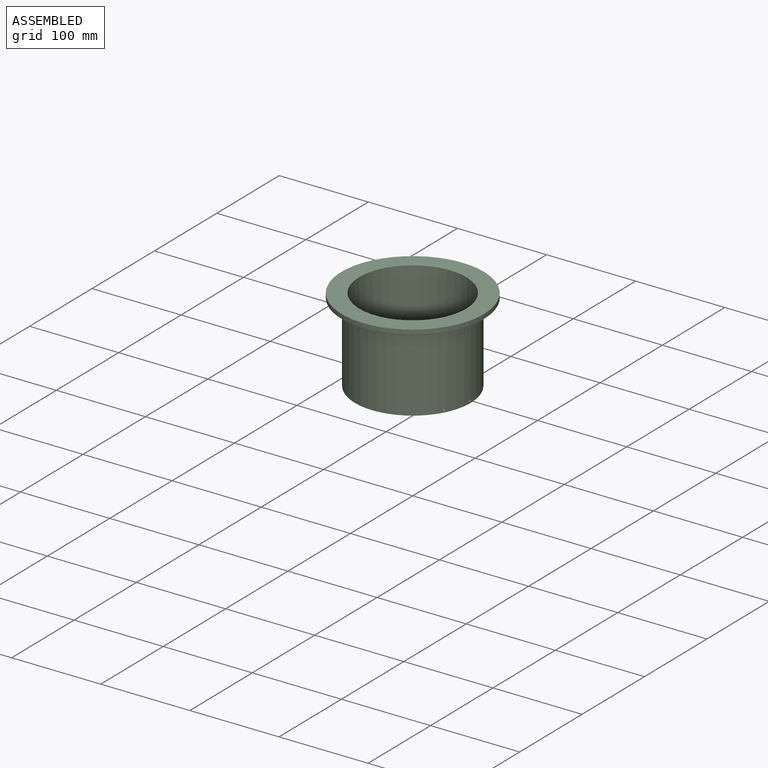
[diagram: assembled view]
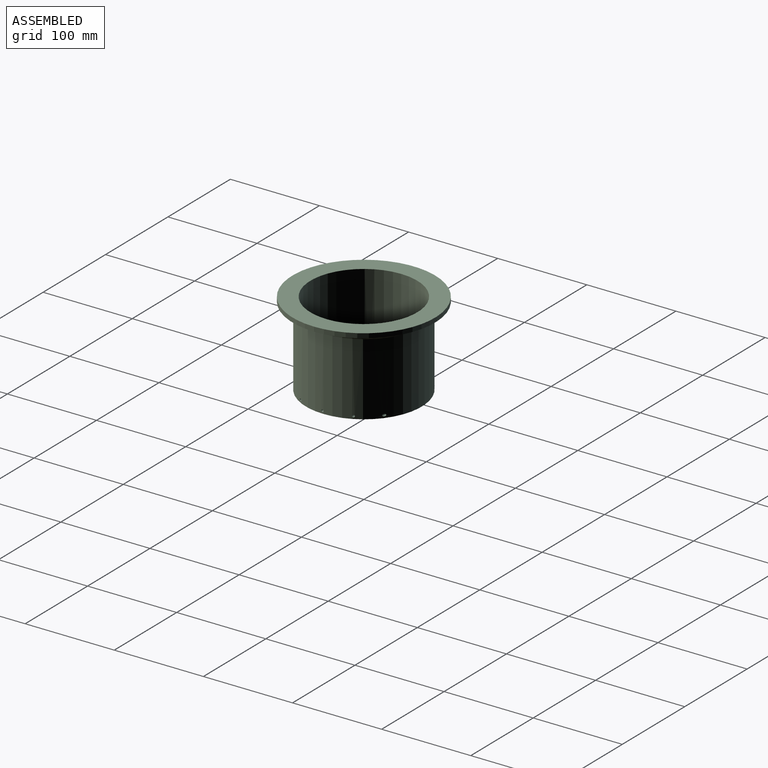
[diagram: assembled view, second angle]
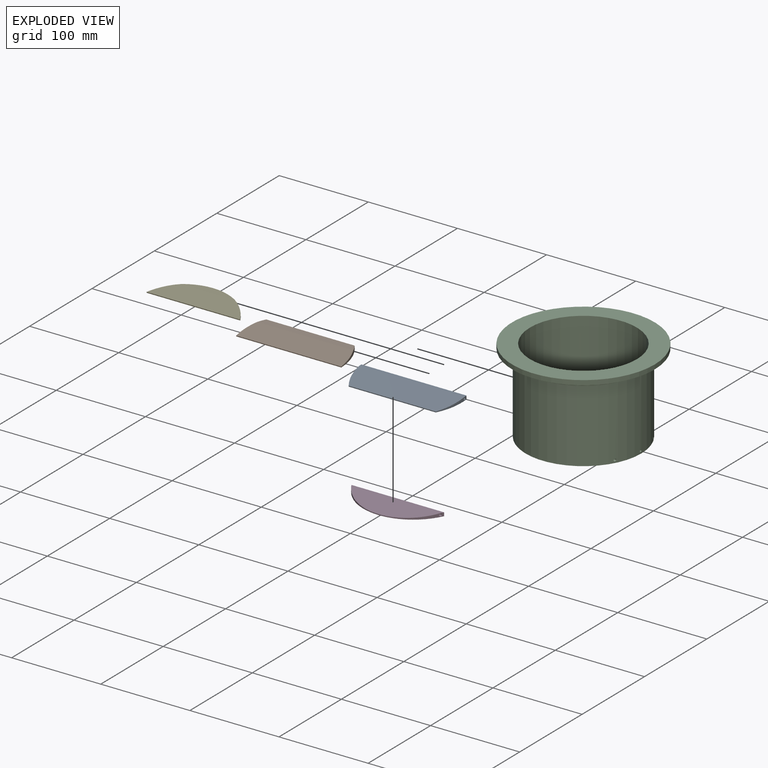
[diagram: exploded view]
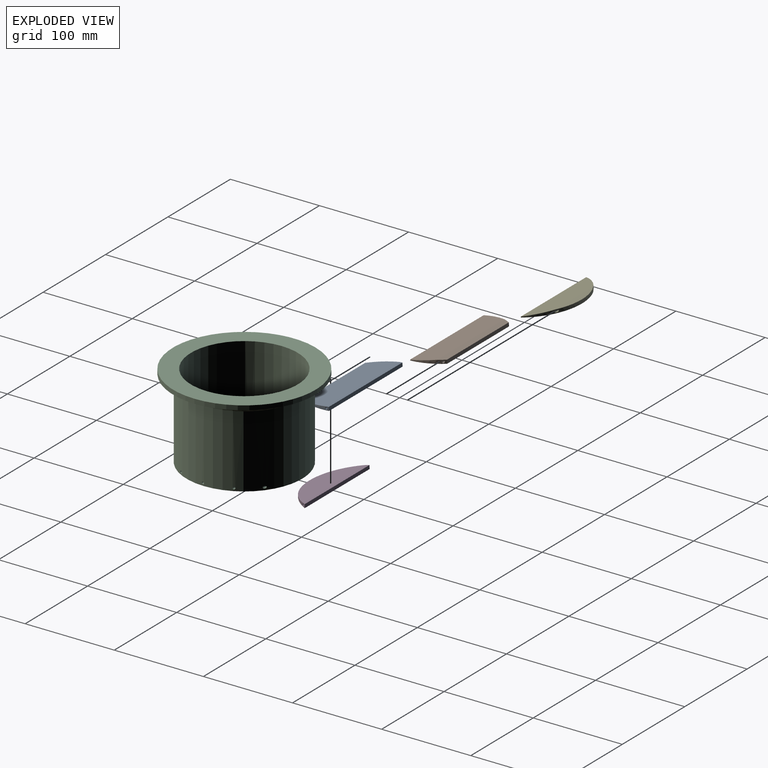
[diagram: exploded view, second angle]
ASSEMBLY  parts=5 mates=4
PART A: 8 faces, bbox 118x35x4 mm
  f0: plane 97.82x1mm, normal (0,-1,0), area 97.8mm2, adj f1,f2,f4,f7
  f1: cylinder r=59mm len=35mm, axis (0,0,-1), area 90.6mm2, adj f0,f3,f4,f5,f6,f7
  f2: cylinder r=59mm len=35mm, axis (0,0,-1), area 90.6mm2, adj f0,f3,f4,f5,f6,f7
  f3: plane 117.93x4mm, normal (0,1,0), area 471.7mm2, adj f1,f2,f4,f5
  f4: plane 118x35mm, normal (0,0,1), area 3916.1mm2, adj f0,f1,f2,f3
  f5: plane 118x3mm, normal (0,0,-1), area 353.9mm2, adj f1,f2,f3,f7
  f6: cylinder r=1.25mm len=118mm, axis (-1,0,0), area 926.5mm2, adj f1,f2
  f7: plane 117.98x32mm, normal (0,-0.09,-1), area 3577.8mm2, adj f0,f1,f2,f5
PART B: 8 faces, bbox 118x35x4 mm
  f0: plane 107.8x8mm, normal (0,0,-1), area 829.9mm2, adj f1,f2,f4,f6
  f1: plane 99.14x4mm, normal (0,1,0), area 396.5mm2, adj f0,f2,f4,f5
  f2: cylinder r=59mm len=35mm, axis (0,0,-1), area 100.7mm2, adj f0,f1,f3,f5,f6,f7
  f3: plane 117.85x1mm, normal (0,-1,0), area 117.8mm2, adj f2,f4,f5,f6
  f4: cylinder r=59mm len=35mm, axis (0,0,-1), area 100.7mm2, adj f0,f1,f3,f5,f6,f7
  f5: plane 118x35mm, normal (0,0,1), area 3935.5mm2, adj f1,f2,f3,f4
  f6: plane 118x27mm, normal (0,-0.11,-0.99), area 3124.8mm2, adj f0,f2,f3,f4
  f7: cylinder r=1.25mm len=104.13mm, axis (1,0,0), area 806.9mm2, adj f2,f4
PART C: 15 faces, bbox 160x160x94.2 mm
  f0: plane 160x160mm, normal (0,0,1), area 3364.6mm2, adj f1,f6
  f1: cylinder r=80mm len=160mm, axis (0,0,-1), area 2513.3mm2, adj f0,f2
  f2: plane 160x160mm, normal (0,0,-1), area 8796.5mm2, adj f1,f3
  f3: cylinder r=60mm len=120mm, axis (0,0,-1), area 35474.6mm2, adj f2,f4,f7,f8,f9,f10,f11,f12
  f4: plane 130x130mm, normal (0,0,1), area 1963.5mm2, adj f3,f5
  f5: cylinder r=65mm len=130mm, axis (0,0,-1), area 33130.4mm2, adj f4,f6,f7,f8,f9,f10,f11,f12
  f6: torus R=73mm, axis (0,0,-1), area 5361.7mm2, adj f0,f5
  f7: cylinder r=1.25mm len=12.34mm, axis (1,0,0), area 68.4mm2, adj f3,f5
  f8: cylinder r=1.25mm len=12.34mm, axis (1,0,0), area 68.4mm2, adj f3,f5
  f9: cylinder r=1.25mm len=6.96mm, axis (1,0,0), area 44.4mm2, adj f3,f5
  f10: cylinder r=1.25mm len=6.96mm, axis (1,0,0), area 44.4mm2, adj f3,f5
  f11: cylinder r=1.25mm len=5mm, axis (1,0,0), area 39.3mm2, adj f3,f5
  f12: cylinder r=1.25mm len=5mm, axis (1,0,0), area 39.3mm2, adj f3,f5
  f13: cylinder r=1.25mm len=7.2mm, axis (1,0,0), area 45.3mm2, adj f3,f5
  f14: cylinder r=1.25mm len=7.2mm, axis (1,0,0), area 45.3mm2, adj f3,f5
PART D: 6 faces, bbox 103.9x31x4 mm
  f0: plane 103.87x3mm, normal (0,0,-1), area 306.5mm2, adj f1,f2,f5
  f1: plane 103.87x4mm, normal (0,1,0), area 415.5mm2, adj f0,f2,f3
  f2: cylinder r=59mm len=103.87mm, axis (0,0,-1), area 260.5mm2, adj f0,f1,f3,f4,f5
  f3: plane 103.87x31mm, normal (0,0,1), area 2292.5mm2, adj f1,f2
  f4: cylinder r=1.25mm len=101.9mm, axis (1,0,0), area 788.4mm2, adj f2
  f5: plane 100.4x28mm, normal (0,-0.11,-0.99), area 1997.4mm2, adj f0,f2
PART E: 6 faces, bbox 104.9x32x4 mm
  f0: cylinder r=59mm len=104.92mm, axis (0,0,-1), area 405.5mm2, adj f1,f2,f3,f4,f5
  f1: plane 59.33x8mm, normal (0,0,-1), area 321mm2, adj f0,f5
  f2: plane 104.92x1mm, normal (0,-1,0), area 104.9mm2, adj f0,f3,f5
  f3: plane 104.92x32mm, normal (0,0,1), area 2396.9mm2, adj f0,f2
  f4: cylinder r=1.25mm len=63.43mm, axis (1,0,0), area 465.2mm2, adj f0
  f5: plane 104.92x24mm, normal (0,-0.12,-0.99), area 2092.1mm2, adj f0,f1,f2
PLACE A rot(axis=(0,1,0.04),180deg) t=(-0.08,-7.08,94.04)mm
PLACE B rot(axis=(0,-1,-0.04),180deg) t=(0.33,-6.57,91.89)mm
PLACE C rot(axis=(0,-1,0),180deg) t=(0,0,94.24)mm
PLACE D rot(axis=(0,1,0.01),180deg) t=(2.84,-2.74,95.13)mm
PLACE E rot(axis=(0,-1,-0.04),180deg) t=(0.02,-7.77,89.44)mm
MATE revolute B.f7 <-> C.f9  axis (-1,0,0) through (53.02,29,3)mm
MATE revolute A.f6 <-> C.f11  axis (1,0,0) through (59.63,-1,3)mm
MATE revolute E.f4 <-> C.f7  axis (-1,0,0) through (-32.08,51,3)mm
MATE revolute D.f4 <-> C.f13  axis (-1,0,0) through (2.84,-31,3)mm
